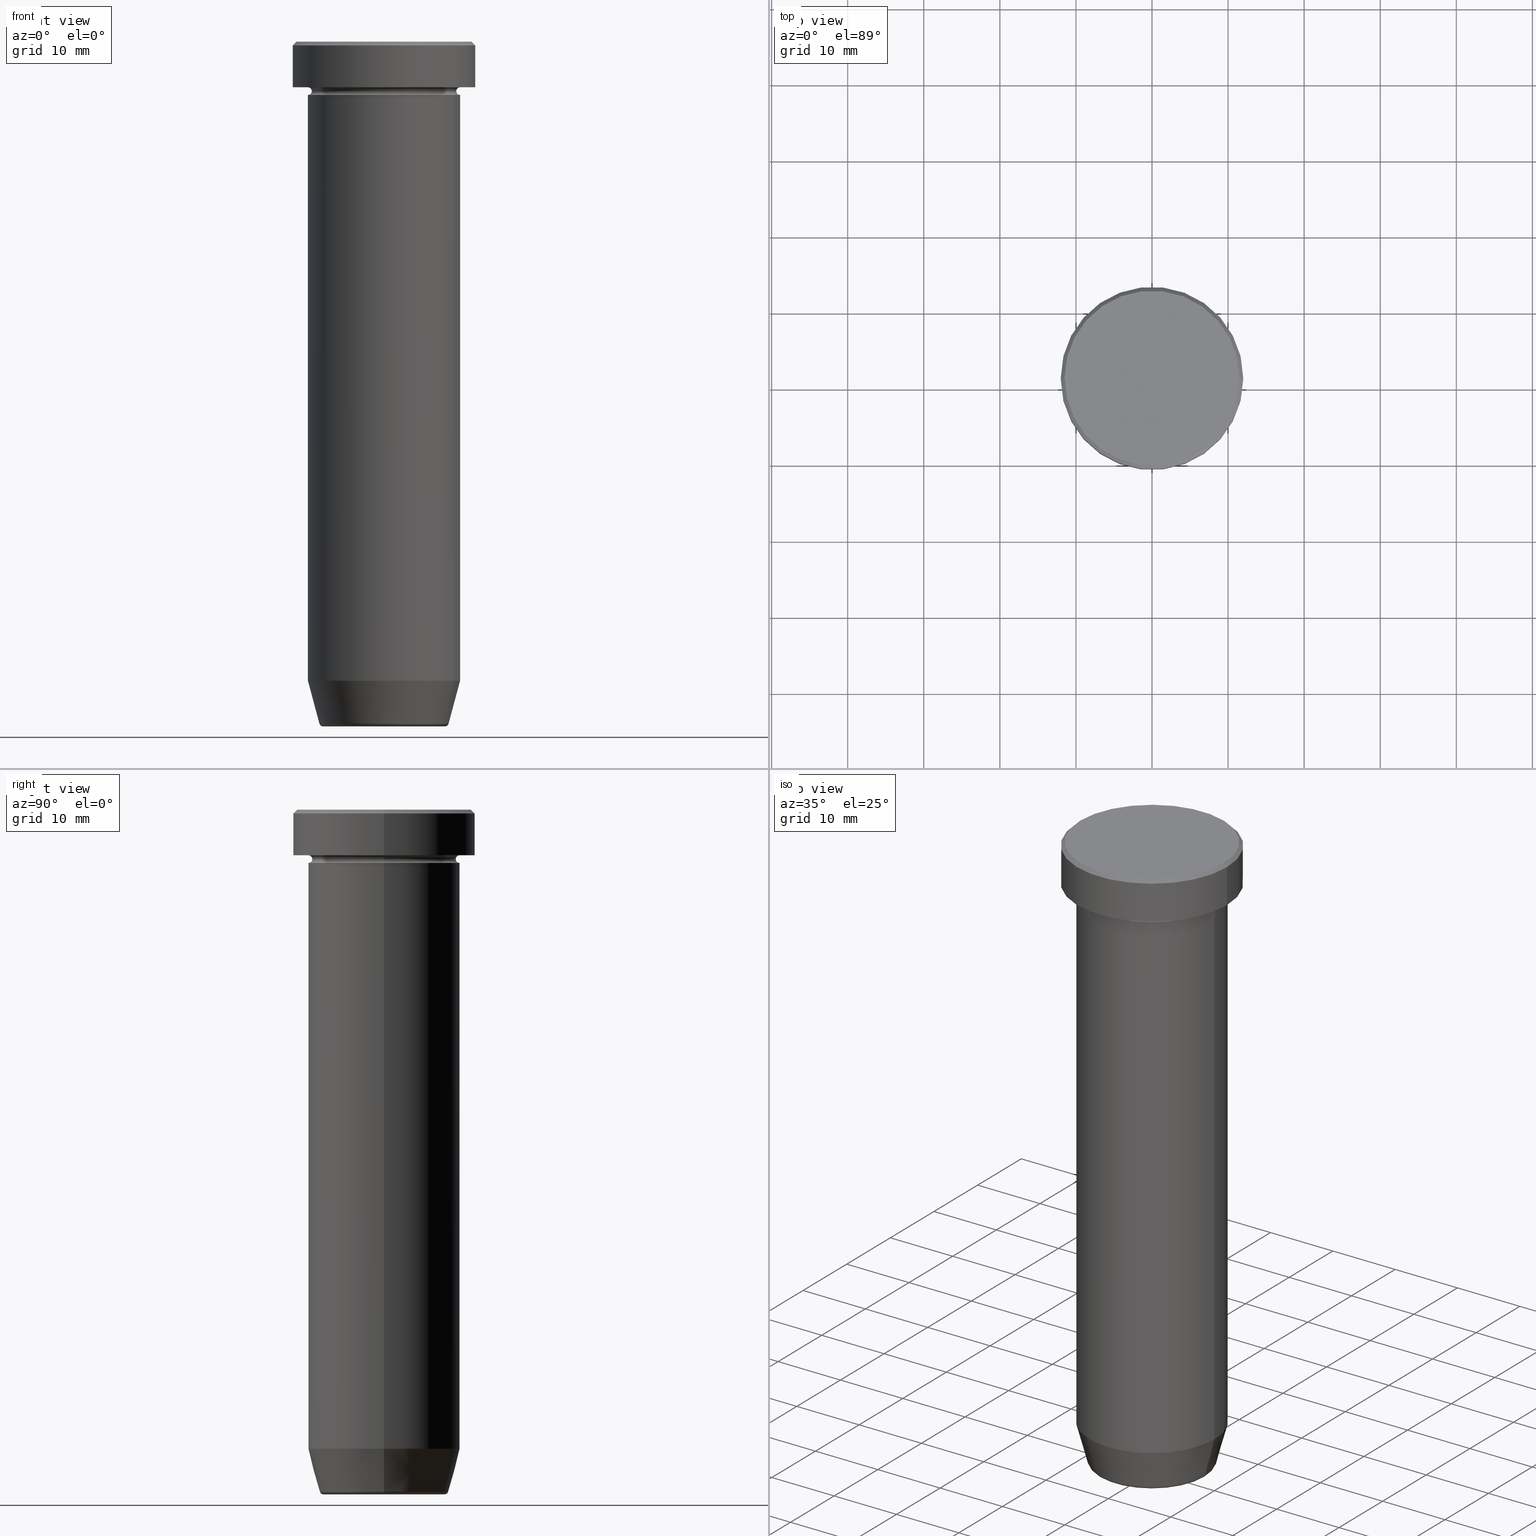
[diagram: canonical four-view strip — front | top / right | iso, engineering-drawing reading convention]
A machine part, canonical four-view strip (front | top / right | iso — engineering-drawing reading convention). The complete STEP part file that produces these views, byte-faithful:
ISO-10303-21;
HEADER;
FILE_DESCRIPTION (( 'STEP AP203' ),
    '1' );
FILE_NAME ('bccc.STEP',
    '2024-01-02T20:49:07',
    ( '' ),
    ( '' ),
    'SwSTEP 2.0',
    'SolidWorks 2019',
    '' );
FILE_SCHEMA (( 'CONFIG_CONTROL_DESIGN' ));
ENDSEC;

DATA;
#1 = AXIS2_PLACEMENT_3D ( 'NONE', #424, #57, #238 ) ;
#2 = DIRECTION ( 'NONE',  ( 0.000000000000000000, 0.000000000000000000, -1.000000000000000000 ) ) ;
#3 = EDGE_LOOP ( 'NONE', ( #506, #186, #483, #107 ) ) ;
#4 = DIRECTION ( 'NONE',  ( -0.000000000000000000, -0.000000000000000000, 1.000000000000000000 ) ) ;
#5 = DIRECTION ( 'NONE',  ( -1.000000000000000000, 1.224646799147353454E-16, 0.000000000000000000 ) ) ;
#6 = VERTEX_POINT ( 'NONE', #595 ) ;
#7 = ADVANCED_FACE ( 'NONE', ( #496 ), #291, .F. ) ;
#8 = EDGE_LOOP ( 'NONE', ( #511, #531 ) ) ;
#9 = CARTESIAN_POINT ( 'NONE',  ( 0.000000000000000000, 0.000000000000000000, -90.00000000000000000 ) ) ;
#10 = AXIS2_PLACEMENT_3D ( 'NONE', #172, #583, #362 ) ;
#11 = AXIS2_PLACEMENT_3D ( 'NONE', #169, #596, #279 ) ;
#12 = DIRECTION ( 'NONE',  ( 0.000000000000000000, 0.000000000000000000, -1.000000000000000000 ) ) ;
#13 = ORIENTED_EDGE ( 'NONE', *, *, #215, .T. ) ;
#14 = CARTESIAN_POINT ( 'NONE',  ( 0.000000000000000000, 0.000000000000000000, -6.499999999999999112 ) ) ;
#15 = APPLICATION_CONTEXT ( 'configuration controlled 3d designs of mechanical parts and assemblies' ) ;
#16 = LINE ( 'NONE', #569, #39 ) ;
#17 = EDGE_CURVE ( 'NONE', #88, #547, #82, .T. ) ;
#18 = DIRECTION ( 'NONE',  ( -1.000000000000000000, 0.000000000000000000, 0.000000000000000000 ) ) ;
#19 = CARTESIAN_POINT ( 'NONE',  ( 10.00000000000000000, 0.000000000000000000, -22.50000000000000000 ) ) ;
#20 = CONICAL_SURFACE ( 'NONE', #116, 8.392304845413260495, 0.2617993877991495744 ) ;
#21 = FACE_OUTER_BOUND ( 'NONE', #390, .T. ) ;
#22 = ORIENTED_EDGE ( 'NONE', *, *, #327, .T. ) ;
#23 = DIRECTION ( 'NONE',  ( 1.000000000000000000, 0.000000000000000000, 0.000000000000000000 ) ) ;
#24 = CIRCLE ( 'NONE', #345, 0.5000000000000004441 ) ;
#25 = ORIENTED_EDGE ( 'NONE', *, *, #586, .T. ) ;
#26 = DIRECTION ( 'NONE',  ( 1.000000000000000000, 0.000000000000000000, 0.000000000000000000 ) ) ;
#27 = AXIS2_PLACEMENT_3D ( 'NONE', #514, #94, #185 ) ;
#28 = EDGE_LOOP ( 'NONE', ( #95, #343, #477, #163 ) ) ;
#29 = FACE_OUTER_BOUND ( 'NONE', #3, .T. ) ;
#30 = VECTOR ( 'NONE', #349, 1000.000000000000000 ) ;
#31 = ORIENTED_EDGE ( 'NONE', *, *, #90, .F. ) ;
#32 = DIRECTION ( 'NONE',  ( 1.000000000000000000, 0.000000000000000000, 0.000000000000000000 ) ) ;
#33 = DATE_TIME_ROLE ( 'creation_date' ) ;
#34 = EDGE_CURVE ( 'NONE', #568, #252, #584, .T. ) ;
#35 = TOROIDAL_SURFACE ( 'NONE', #522, 10.00000000000000000, 0.5000000000000000000 ) ;
#36 = FACE_OUTER_BOUND ( 'NONE', #305, .T. ) ;
#37 = PERSON_AND_ORGANIZATION_ROLE ( 'creator' ) ;
#38 = AXIS2_PLACEMENT_3D ( 'NONE', #312, #340, #488 ) ;
#39 = VECTOR ( 'NONE', #235, 1000.000000000000000 ) ;
#40 = PERSON_AND_ORGANIZATION ( #269, #564 ) ;
#41 = CC_DESIGN_APPROVAL ( #209, ( #546 ) ) ;
#42 = DIRECTION ( 'NONE',  ( -0.000000000000000000, -0.000000000000000000, 1.000000000000000000 ) ) ;
#43 = EDGE_LOOP ( 'NONE', ( #170, #383, #260, #154 ) ) ;
#44 = EDGE_CURVE ( 'NONE', #79, #547, #24, .T. ) ;
#45 = SECURITY_CLASSIFICATION_LEVEL ( 'unclassified' ) ;
#46 = ORIENTED_EDGE ( 'NONE', *, *, #598, .T. ) ;
#47 = MANIFOLD_SOLID_BREP ( 'Zaoblit4', #262 ) ;
#48 = DIRECTION ( 'NONE',  ( -0.000000000000000000, -0.000000000000000000, 1.000000000000000000 ) ) ;
#49 = CARTESIAN_POINT ( 'NONE',  ( -10.00000000000000000, 0.000000000000000000, -6.500000000000000888 ) ) ;
#50 = CONICAL_SURFACE ( 'NONE', #324, 8.392304845413260495, 0.2617993877991495744 ) ;
#51 = DIRECTION ( 'NONE',  ( -0.000000000000000000, -0.000000000000000000, 1.000000000000000000 ) ) ;
#52 = LOCAL_TIME ( 21, 49, 7.000000000000000000, #173 ) ;
#53 = EDGE_LOOP ( 'NONE', ( #556, #385, #392, #232 ) ) ;
#54 = ORIENTED_EDGE ( 'NONE', *, *, #264, .F. ) ;
#55 = DIRECTION ( 'NONE',  ( 0.7071067811865451302, 8.659560562354904508E-17, -0.7071067811865500152 ) ) ;
#56 = EDGE_CURVE ( 'NONE', #443, #457, #366, .T. ) ;
#57 = DIRECTION ( 'NONE',  ( 0.000000000000000000, 0.000000000000000000, -1.000000000000000000 ) ) ;
#58 = DIRECTION ( 'NONE',  ( -0.000000000000000000, -1.000000000000000000, -0.000000000000000000 ) ) ;
#59 = DIRECTION ( 'NONE',  ( -0.000000000000000000, -0.000000000000000000, 1.000000000000000000 ) ) ;
#60 = VECTOR ( 'NONE', #150, 1000.000000000000000 ) ;
#61 = CARTESIAN_POINT ( 'NONE',  ( 0.000000000000000000, 0.000000000000000000, -0.4999999999999987232 ) ) ;
#62 = CARTESIAN_POINT ( 'NONE',  ( 0.000000000000000000, 0.000000000000000000, 0.000000000000000000 ) ) ;
#63 = EDGE_LOOP ( 'NONE', ( #397, #31, #365, #344 ) ) ;
#64 = CARTESIAN_POINT ( 'NONE',  ( 12.00000000000000000, 0.000000000000000000, -0.4999999999999987232 ) ) ;
#65 = AXIS2_PLACEMENT_3D ( 'NONE', #537, #110, #391 ) ;
#66 = CC_DESIGN_APPROVAL ( #492, ( #387 ) ) ;
#67 = DIRECTION ( 'NONE',  ( 0.000000000000000000, 0.000000000000000000, -1.000000000000000000 ) ) ;
#68 = ADVANCED_FACE ( 'NONE', ( #418 ), #184, .T. ) ;
#69 = ORIENTED_EDGE ( 'NONE', *, *, #206, .T. ) ;
#70 = DIRECTION ( 'NONE',  ( -0.000000000000000000, -0.000000000000000000, 1.000000000000000000 ) ) ;
#71 = CYLINDRICAL_SURFACE ( 'NONE', #536, 10.00000000000000000 ) ;
#72 = ORIENTED_EDGE ( 'NONE', *, *, #175, .F. ) ;
#73 = ADVANCED_FACE ( 'NONE', ( #532 ), #35, .F. ) ;
#74 = DIRECTION ( 'NONE',  ( -0.000000000000000000, -0.000000000000000000, 1.000000000000000000 ) ) ;
#75 = DIRECTION ( 'NONE',  ( 0.000000000000000000, -1.000000000000000000, 0.000000000000000000 ) ) ;
#76 = DIRECTION ( 'NONE',  ( -0.000000000000000000, -0.000000000000000000, 1.000000000000000000 ) ) ;
#77 = CC_DESIGN_DATE_AND_TIME_ASSIGNMENT ( #81, #455, ( #546 ) ) ;
#78 = PERSON_AND_ORGANIZATION ( #269, #564 ) ;
#79 = VERTEX_POINT ( 'NONE', #151 ) ;
#80 = CARTESIAN_POINT ( 'NONE',  ( 0.000000000000000000, 0.000000000000000000, -5.999999999999999112 ) ) ;
#81 = DATE_AND_TIME ( #363, #52 ) ;
#82 = LINE ( 'NONE', #369, #463 ) ;
#83 = VERTEX_POINT ( 'NONE', #576 ) ;
#84 = CIRCLE ( 'NONE', #124, 12.00000000000000000 ) ;
#85 = ADVANCED_FACE ( 'NONE', ( #197 ), #561, .F. ) ;
#86 = DATE_AND_TIME ( #371, #485 ) ;
#87 = DIRECTION ( 'NONE',  ( 0.000000000000000000, 0.000000000000000000, -1.000000000000000000 ) ) ;
#88 = VERTEX_POINT ( 'NONE', #112 ) ;
#89 = CIRCLE ( 'NONE', #128, 10.00000000000000000 ) ;
#90 = EDGE_CURVE ( 'NONE', #440, #83, #122, .T. ) ;
#91 = FACE_OUTER_BOUND ( 'NONE', #8, .T. ) ;
#92 = VECTOR ( 'NONE', #55, 1000.000000000000114 ) ;
#93 = ORIENTED_EDGE ( 'NONE', *, *, #264, .T. ) ;
#94 = DIRECTION ( 'NONE',  ( 0.000000000000000000, 0.000000000000000000, -1.000000000000000000 ) ) ;
#95 = ORIENTED_EDGE ( 'NONE', *, *, #17, .F. ) ;
#96 = DIRECTION ( 'NONE',  ( 1.000000000000000000, 0.000000000000000000, 0.000000000000000000 ) ) ;
#97 = EDGE_LOOP ( 'NONE', ( #468, #46 ) ) ;
#98 = DIRECTION ( 'NONE',  ( 1.000000000000000000, 0.000000000000000000, 0.000000000000000000 ) ) ;
#99 = ORIENTED_EDGE ( 'NONE', *, *, #17, .T. ) ;
#100 = CARTESIAN_POINT ( 'NONE',  ( 0.000000000000000000, 0.000000000000000000, -6.000000000000000000 ) ) ;
#101 = EDGE_LOOP ( 'NONE', ( #563, #348, #167, #227 ) ) ;
#102 = AXIS2_PLACEMENT_3D ( 'NONE', #337, #417, #422 ) ;
#103 = CC_DESIGN_SECURITY_CLASSIFICATION ( #546, ( #316 ) ) ;
#104 = AXIS2_PLACEMENT_3D ( 'NONE', #300, #48, #249 ) ;
#105 = EDGE_CURVE ( 'NONE', #503, #208, #541, .T. ) ;
#106 = CARTESIAN_POINT ( 'NONE',  ( 12.00000000000000000, 0.000000000000000000, -5.999999999999999112 ) ) ;
#107 = ORIENTED_EDGE ( 'NONE', *, *, #298, .F. ) ;
#108 = DIRECTION ( 'NONE',  ( 0.000000000000000000, 0.000000000000000000, -1.000000000000000000 ) ) ;
#109 = CARTESIAN_POINT ( 'NONE',  ( 0.000000000000000000, 0.000000000000000000, -89.50000000000000000 ) ) ;
#110 = DIRECTION ( 'NONE',  ( -1.224646799147353207E-16, 1.000000000000000000, 0.000000000000000000 ) ) ;
#111 = ORIENTED_EDGE ( 'NONE', *, *, #121, .F. ) ;
#112 = CARTESIAN_POINT ( 'NONE',  ( -10.00000000000000000, 1.224646799147353256E-15, -22.50000000000000000 ) ) ;
#113 = DIRECTION ( 'NONE',  ( 1.000000000000000000, 0.000000000000000000, 0.000000000000000000 ) ) ;
#114 = ORIENTED_EDGE ( 'NONE', *, *, #194, .T. ) ;
#115 = CC_DESIGN_PERSON_AND_ORGANIZATION_ASSIGNMENT ( #460, #228, ( #219 ) ) ;
#116 = AXIS2_PLACEMENT_3D ( 'NONE', #384, #199, #557 ) ;
#117 = ORIENTED_EDGE ( 'NONE', *, *, #458, .F. ) ;
#118 = DIRECTION ( 'NONE',  ( -1.000000000000000000, 0.000000000000000000, 0.000000000000000000 ) ) ;
#119 = VERTEX_POINT ( 'NONE', #520 ) ;
#120 = DIRECTION ( 'NONE',  ( -1.000000000000000000, 0.000000000000000000, 0.000000000000000000 ) ) ;
#121 = EDGE_CURVE ( 'NONE', #119, #79, #293, .T. ) ;
#122 = CIRCLE ( 'NONE', #453, 11.50000000000000533 ) ;
#123 = DIRECTION ( 'NONE',  ( -0.000000000000000000, -0.000000000000000000, 1.000000000000000000 ) ) ;
#124 = AXIS2_PLACEMENT_3D ( 'NONE', #560, #2, #433 ) ;
#125 = ORIENTED_EDGE ( 'NONE', *, *, #420, .T. ) ;
#126 = AXIS2_PLACEMENT_3D ( 'NONE', #404, #127, #270 ) ;
#127 = DIRECTION ( 'NONE',  ( -0.000000000000000000, -0.000000000000000000, 1.000000000000000000 ) ) ;
#128 = AXIS2_PLACEMENT_3D ( 'NONE', #375, #189, #517 ) ;
#129 = CALENDAR_DATE ( 2024, 2, 1 ) ;
#130 = LINE ( 'NONE', #452, #416 ) ;
#131 = APPLICATION_PROTOCOL_DEFINITION ( 'international standard', 'config_control_design', 1994, #555 ) ;
#132 = ADVANCED_FACE ( 'NONE', ( #142 ), #360, .T. ) ;
#133 = DESIGN_CONTEXT ( 'detailed design', #555, 'design' ) ;
#134 = AXIS2_PLACEMENT_3D ( 'NONE', #49, #58, #192 ) ;
#135 = APPROVAL_PERSON_ORGANIZATION ( #40, #209, #407 ) ;
#136 = PERSON_AND_ORGANIZATION ( #269, #564 ) ;
#137 = PERSON_AND_ORGANIZATION ( #269, #564 ) ;
#138 = ADVANCED_FACE ( 'NONE', ( #421 ), #284, .F. ) ;
#139 = EDGE_LOOP ( 'NONE', ( #200, #196, #148, #255 ) ) ;
#140 = CARTESIAN_POINT ( 'NONE',  ( 0.000000000000000000, 0.000000000000000000, -6.999999999999999112 ) ) ;
#141 = DIRECTION ( 'NONE',  ( -0.000000000000000000, -0.000000000000000000, 1.000000000000000000 ) ) ;
#142 = FACE_OUTER_BOUND ( 'NONE', #139, .T. ) ;
#143 = DIRECTION ( 'NONE',  ( -0.000000000000000000, -0.000000000000000000, 1.000000000000000000 ) ) ;
#144 = CONICAL_SURFACE ( 'NONE', #213, 11.50000000000000533, 0.7853981633974447263 ) ;
#145 = DIRECTION ( 'NONE',  ( 1.000000000000000000, 0.000000000000000000, 0.000000000000000000 ) ) ;
#146 = DIRECTION ( 'NONE',  ( 1.000000000000000000, 0.000000000000000000, 0.000000000000000000 ) ) ;
#147 = DIRECTION ( 'NONE',  ( 1.000000000000000000, 0.000000000000000000, 0.000000000000000000 ) ) ;
#148 = ORIENTED_EDGE ( 'NONE', *, *, #206, .F. ) ;
#149 = DIRECTION ( 'NONE',  ( 1.000000000000000000, 0.000000000000000000, 0.000000000000000000 ) ) ;
#150 = DIRECTION ( 'NONE',  ( -0.000000000000000000, -0.000000000000000000, 1.000000000000000000 ) ) ;
#151 = CARTESIAN_POINT ( 'NONE',  ( -9.500000000000000000, 1.194030629168669469E-15, -6.499999999999999112 ) ) ;
#152 = EDGE_CURVE ( 'NONE', #364, #547, #89, .T. ) ;
#153 = DIRECTION ( 'NONE',  ( -0.000000000000000000, -0.000000000000000000, 1.000000000000000000 ) ) ;
#154 = ORIENTED_EDGE ( 'NONE', *, *, #352, .T. ) ;
#155 = AXIS2_PLACEMENT_3D ( 'NONE', #530, #354, #261 ) ;
#156 = LOCAL_TIME ( 21, 49, 7.000000000000000000, #222 ) ;
#157 = CIRCLE ( 'NONE', #104, 8.491604264568310967 ) ;
#158 = DIRECTION ( 'NONE',  ( 1.224646799147353207E-16, 1.000000000000000000, 0.000000000000000000 ) ) ;
#159 = ORIENTED_EDGE ( 'NONE', *, *, #272, .F. ) ;
#160 = ADVANCED_FACE ( 'NONE', ( #331 ), #587, .T. ) ;
#161 = CARTESIAN_POINT ( 'NONE',  ( -11.50000000000000533, 0.000000000000000000, 0.000000000000000000 ) ) ;
#162 = ORIENTED_EDGE ( 'NONE', *, *, #105, .T. ) ;
#163 = ORIENTED_EDGE ( 'NONE', *, *, #290, .F. ) ;
#164 = DIRECTION ( 'NONE',  ( -1.000000000000000000, 1.224646799147353454E-16, 0.000000000000000000 ) ) ;
#165 = DIRECTION ( 'NONE',  ( -0.7071067811865451302, 0.000000000000000000, -0.7071067811865500152 ) ) ;
#166 = DIRECTION ( 'NONE',  ( 1.000000000000000000, 0.000000000000000000, 0.000000000000000000 ) ) ;
#167 = ORIENTED_EDGE ( 'NONE', *, *, #368, .T. ) ;
#168 = CARTESIAN_POINT ( 'NONE',  ( -8.491604264568310967, 1.132284198685156190E-15, -89.62940952255124216 ) ) ;
#169 = CARTESIAN_POINT ( 'NONE',  ( 0.000000000000000000, 0.000000000000000000, 0.000000000000000000 ) ) ;
#170 = ORIENTED_EDGE ( 'NONE', *, *, #215, .F. ) ;
#171 = CIRCLE ( 'NONE', #295, 10.00000000000000000 ) ;
#172 = CARTESIAN_POINT ( 'NONE',  ( 10.00000000000000000, 0.000000000000000000, -6.499999999999999112 ) ) ;
#173 = COORDINATED_UNIVERSAL_TIME_OFFSET ( 1, 0, .AHEAD. ) ;
#174 = ORIENTED_EDGE ( 'NONE', *, *, #521, .F. ) ;
#175 = EDGE_CURVE ( 'NONE', #503, #457, #210, .T. ) ;
#176 =( LENGTH_UNIT ( ) NAMED_UNIT ( * ) SI_UNIT ( .MILLI., .METRE. ) );
#177 = AXIS2_PLACEMENT_3D ( 'NONE', #559, #141, #188 ) ;
#178 = CARTESIAN_POINT ( 'NONE',  ( 0.000000000000000000, 0.000000000000000000, -6.000000000000000000 ) ) ;
#179 = AXIS2_PLACEMENT_3D ( 'NONE', #350, #158, #164 ) ;
#180 = CALENDAR_DATE ( 2024, 2, 1 ) ;
#181 = ORIENTED_EDGE ( 'NONE', *, *, #105, .F. ) ;
#182 = ADVANCED_FACE ( 'NONE', ( #248 ), #567, .T. ) ;
#183 = LINE ( 'NONE', #519, #361 ) ;
#184 = CYLINDRICAL_SURFACE ( 'NONE', #177, 10.00000000000000000 ) ;
#185 = DIRECTION ( 'NONE',  ( -1.000000000000000000, 0.000000000000000000, 0.000000000000000000 ) ) ;
#186 = ORIENTED_EDGE ( 'NONE', *, *, #175, .T. ) ;
#187 = LINE ( 'NONE', #429, #60 ) ;
#188 = DIRECTION ( 'NONE',  ( 1.000000000000000000, 0.000000000000000000, 0.000000000000000000 ) ) ;
#189 = DIRECTION ( 'NONE',  ( -0.000000000000000000, -0.000000000000000000, 1.000000000000000000 ) ) ;
#190 = ORIENTED_EDGE ( 'NONE', *, *, #357, .T. ) ;
#191 = CIRCLE ( 'NONE', #278, 11.50000000000000533 ) ;
#192 = DIRECTION ( 'NONE',  ( 0.000000000000000000, 0.000000000000000000, -1.000000000000000000 ) ) ;
#193 = DIRECTION ( 'NONE',  ( -0.000000000000000000, -0.000000000000000000, 1.000000000000000000 ) ) ;
#194 = EDGE_CURVE ( 'NONE', #528, #252, #157, .T. ) ;
#195 = DIRECTION ( 'NONE',  ( 1.000000000000000000, 0.000000000000000000, 0.000000000000000000 ) ) ;
#196 = ORIENTED_EDGE ( 'NONE', *, *, #223, .T. ) ;
#197 = FACE_OUTER_BOUND ( 'NONE', #216, .T. ) ;
#198 = ORIENTED_EDGE ( 'NONE', *, *, #152, .F. ) ;
#199 = DIRECTION ( 'NONE',  ( -0.000000000000000000, -0.000000000000000000, 1.000000000000000000 ) ) ;
#200 = ORIENTED_EDGE ( 'NONE', *, *, #508, .F. ) ;
#201 = AXIS2_PLACEMENT_3D ( 'NONE', #226, #75, #408 ) ;
#202 = CARTESIAN_POINT ( 'NONE',  ( 0.000000000000000000, 4.898587196589412237E-15, -90.00000000000000000 ) ) ;
#203 = CARTESIAN_POINT ( 'NONE',  ( -9.999999999999998224, 1.224646799147353059E-15, 0.000000000000000000 ) ) ;
#204 = DIRECTION ( 'NONE',  ( -0.000000000000000000, -0.000000000000000000, 1.000000000000000000 ) ) ;
#205 = ORIENTED_EDGE ( 'NONE', *, *, #34, .F. ) ;
#206 = EDGE_CURVE ( 'NONE', #237, #431, #84, .T. ) ;
#207 = DIRECTION ( 'NONE',  ( -0.000000000000000000, -0.000000000000000000, 1.000000000000000000 ) ) ;
#208 = VERTEX_POINT ( 'NONE', #380 ) ;
#209 = APPROVAL ( #225, 'NEUR�EN�' ) ;
#210 = LINE ( 'NONE', #203, #30 ) ;
#211 = DIRECTION ( 'NONE',  ( -0.000000000000000000, -0.000000000000000000, 1.000000000000000000 ) ) ;
#212 = CARTESIAN_POINT ( 'NONE',  ( 0.000000000000000000, 0.000000000000000000, 0.000000000000000000 ) ) ;
#213 = AXIS2_PLACEMENT_3D ( 'NONE', #306, #251, #118 ) ;
#214 = DIRECTION ( 'NONE',  ( -0.000000000000000000, -0.000000000000000000, 1.000000000000000000 ) ) ;
#215 = EDGE_CURVE ( 'NONE', #273, #237, #183, .T. ) ;
#216 = EDGE_LOOP ( 'NONE', ( #22, #93 ) ) ;
#217 = FACE_OUTER_BOUND ( 'NONE', #329, .T. ) ;
#218 = DIRECTION ( 'NONE',  ( -1.000000000000000000, 0.000000000000000000, 0.000000000000000000 ) ) ;
#219 = PRODUCT ( 'bccc', 'bccc', '', ( #507 ) ) ;
#220 = AXIS2_PLACEMENT_3D ( 'NONE', #400, #275, #166 ) ;
#221 = DIRECTION ( 'NONE',  ( 0.000000000000000000, 0.000000000000000000, -1.000000000000000000 ) ) ;
#222 = COORDINATED_UNIVERSAL_TIME_OFFSET ( 1, 0, .AHEAD. ) ;
#223 = EDGE_CURVE ( 'NONE', #83, #431, #239, .T. ) ;
#224 = AXIS2_PLACEMENT_3D ( 'NONE', #140, #4, #147 ) ;
#225 = APPROVAL_STATUS ( 'not_yet_approved' ) ;
#226 = CARTESIAN_POINT ( 'NONE',  ( 8.008641351423779753, 0.000000000000000000, -89.50000000000000000 ) ) ;
#227 = ORIENTED_EDGE ( 'NONE', *, *, #598, .F. ) ;
#228 = PERSON_AND_ORGANIZATION_ROLE ( 'design_owner' ) ;
#229 = ORIENTED_EDGE ( 'NONE', *, *, #335, .F. ) ;
#230 = ADVANCED_FACE ( 'NONE', ( #241 ), #20, .T. ) ;
#231 = PERSON_AND_ORGANIZATION_ROLE ( 'classification_officer' ) ;
#232 = ORIENTED_EDGE ( 'NONE', *, *, #368, .F. ) ;
#233 = CIRCLE ( 'NONE', #134, 0.5000000000000004441 ) ;
#234 = AXIS2_PLACEMENT_3D ( 'NONE', #80, #76, #32 ) ;
#235 = DIRECTION ( 'NONE',  ( -0.2588190451025209060, 3.169619151431766790E-17, 0.9659258262890682012 ) ) ;
#236 = PRODUCT_RELATED_PRODUCT_CATEGORY ( 'detail', '', ( #219 ) ) ;
#237 = VERTEX_POINT ( 'NONE', #509 ) ;
#238 = DIRECTION ( 'NONE',  ( -1.000000000000000000, 0.000000000000000000, 0.000000000000000000 ) ) ;
#239 = LINE ( 'NONE', #244, #92 ) ;
#240 = ORIENTED_EDGE ( 'NONE', *, *, #441, .F. ) ;
#241 = FACE_OUTER_BOUND ( 'NONE', #499, .T. ) ;
#242 = DIRECTION ( 'NONE',  ( 1.000000000000000000, 0.000000000000000000, 0.000000000000000000 ) ) ;
#243 = ADVANCED_FACE ( 'NONE', ( #91 ), #382, .T. ) ;
#244 = CARTESIAN_POINT ( 'NONE',  ( 11.50000000000000533, 1.408343819019456768E-15, 0.000000000000000000 ) ) ;
#245 = AXIS2_PLACEMENT_3D ( 'NONE', #319, #221, #544 ) ;
#246 = ORIENTED_EDGE ( 'NONE', *, *, #194, .F. ) ;
#247 = EDGE_LOOP ( 'NONE', ( #525, #99, #198, #450 ) ) ;
#248 = FACE_OUTER_BOUND ( 'NONE', #575, .T. ) ;
#249 = DIRECTION ( 'NONE',  ( -1.000000000000000000, 0.000000000000000000, 0.000000000000000000 ) ) ;
#250 = MANIFOLD_SOLID_BREP ( 'Zkosen�1', #551 ) ;
#251 = DIRECTION ( 'NONE',  ( 0.000000000000000000, 0.000000000000000000, -1.000000000000000000 ) ) ;
#252 = VERTEX_POINT ( 'NONE', #287 ) ;
#253 = DIRECTION ( 'NONE',  ( -0.000000000000000000, -0.000000000000000000, 1.000000000000000000 ) ) ;
#254 = FACE_OUTER_BOUND ( 'NONE', #294, .T. ) ;
#255 = ORIENTED_EDGE ( 'NONE', *, *, #548, .F. ) ;
#256 = AXIS2_PLACEMENT_3D ( 'NONE', #258, #538, #120 ) ;
#257 = CC_DESIGN_DATE_AND_TIME_ASSIGNMENT ( #86, #33, ( #387 ) ) ;
#258 = CARTESIAN_POINT ( 'NONE',  ( 0.000000000000000000, 0.000000000000000000, -89.62940952255124216 ) ) ;
#259 = ORIENTED_EDGE ( 'NONE', *, *, #539, .T. ) ;
#260 = ORIENTED_EDGE ( 'NONE', *, *, #565, .T. ) ;
#261 = DIRECTION ( 'NONE',  ( 1.000000000000000000, 0.000000000000000000, 0.000000000000000000 ) ) ;
#262 = CLOSED_SHELL ( 'NONE', ( #160, #282, #432, #476, #376, #230, #85, #446 ) ) ;
#263 = ORIENTED_EDGE ( 'NONE', *, *, #56, .T. ) ;
#264 = EDGE_CURVE ( 'NONE', #6, #568, #415, .T. ) ;
#265 = PLANE ( 'NONE',  #339 ) ;
#266 = DIRECTION ( 'NONE',  ( 1.224646799147353207E-16, 1.000000000000000000, 0.000000000000000000 ) ) ;
#267 = AXIS2_PLACEMENT_3D ( 'NONE', #9, #12, #98 ) ;
#268 = CARTESIAN_POINT ( 'NONE',  ( 0.000000000000000000, 0.000000000000000000, -6.499999999999999112 ) ) ;
#269 = PERSON ( 'NEUR�EN�', 'NEUR�EN�', 'NEUR�EN�', ('NEUR�EN�'), ('NEUR�EN�'), ('NEUR�EN�') ) ;
#270 = DIRECTION ( 'NONE',  ( 1.000000000000000000, 0.000000000000000000, 0.000000000000000000 ) ) ;
#271 = PERSON_AND_ORGANIZATION ( #269, #564 ) ;
#272 = EDGE_CURVE ( 'NONE', #528, #503, #16, .T. ) ;
#273 = VERTEX_POINT ( 'NONE', #374 ) ;
#274 =( NAMED_UNIT ( * ) PLANE_ANGLE_UNIT ( ) SI_UNIT ( $, .RADIAN. ) );
#275 = DIRECTION ( 'NONE',  ( -0.000000000000000000, -0.000000000000000000, 1.000000000000000000 ) ) ;
#276 = APPROVAL_DATE_TIME ( #502, #209 ) ;
#277 = ORIENTED_EDGE ( 'NONE', *, *, #44, .T. ) ;
#278 = AXIS2_PLACEMENT_3D ( 'NONE', #497, #74, #451 ) ;
#279 = DIRECTION ( 'NONE',  ( 1.000000000000000000, 0.000000000000000000, 0.000000000000000000 ) ) ;
#280 = DATE_AND_TIME ( #129, #573 ) ;
#281 = CARTESIAN_POINT ( 'NONE',  ( 0.000000000000000000, 0.000000000000000000, -22.50000000000000000 ) ) ;
#282 = ADVANCED_FACE ( 'NONE', ( #338 ), #50, .T. ) ;
#283 = CARTESIAN_POINT ( 'NONE',  ( 0.000000000000000000, 0.000000000000000000, -83.99999999999998579 ) ) ;
#284 = TOROIDAL_SURFACE ( 'NONE', #27, 10.00000000000000000, 0.5000000000000000000 ) ;
#285 = AXIS2_PLACEMENT_3D ( 'NONE', #389, #207, #574 ) ;
#286 = VERTEX_POINT ( 'NONE', #524 ) ;
#287 = CARTESIAN_POINT ( 'NONE',  ( 8.491604264568310967, 0.000000000000000000, -89.62940952255124216 ) ) ;
#288 = ORIENTED_EDGE ( 'NONE', *, *, #298, .T. ) ;
#289 = CARTESIAN_POINT ( 'NONE',  ( 8.392304845413260495, 0.000000000000000000, -90.00000000000000000 ) ) ;
#290 = EDGE_CURVE ( 'NONE', #547, #364, #553, .T. ) ;
#291 = TOROIDAL_SURFACE ( 'NONE', #220, 10.00000000000000000, 0.5000000000000000000 ) ;
#292 = CARTESIAN_POINT ( 'NONE',  ( 10.00000000000000000, 0.000000000000000000, -22.50000000000000000 ) ) ;
#293 = CIRCLE ( 'NONE', #543, 9.500000000000000000 ) ;
#294 = EDGE_LOOP ( 'NONE', ( #229, #518 ) ) ;
#295 = AXIS2_PLACEMENT_3D ( 'NONE', #328, #336, #513 ) ;
#296 = DIRECTION ( 'NONE',  ( -1.000000000000000000, 0.000000000000000000, 0.000000000000000000 ) ) ;
#297 = VERTEX_POINT ( 'NONE', #292 ) ;
#298 = EDGE_CURVE ( 'NONE', #208, #443, #187, .T. ) ;
#299 = CYLINDRICAL_SURFACE ( 'NONE', #597, 12.00000000000000000 ) ;
#300 = CARTESIAN_POINT ( 'NONE',  ( 0.000000000000000000, 0.000000000000000000, -89.62940952255124216 ) ) ;
#301 = ORIENTED_EDGE ( 'NONE', *, *, #152, .T. ) ;
#302 = DIRECTION ( 'NONE',  ( 0.000000000000000000, -0.000000000000000000, 1.000000000000000000 ) ) ;
#303 = CC_DESIGN_PERSON_AND_ORGANIZATION_ASSIGNMENT ( #137, #231, ( #546 ) ) ;
#304 = DIRECTION ( 'NONE',  ( -1.000000000000000000, 0.000000000000000000, -0.000000000000000000 ) ) ;
#305 = EDGE_LOOP ( 'NONE', ( #470, #277, #486, #174 ) ) ;
#306 = CARTESIAN_POINT ( 'NONE',  ( 0.000000000000000000, 0.000000000000000000, 0.000000000000000000 ) ) ;
#307 = EDGE_LOOP ( 'NONE', ( #263, #25 ) ) ;
#308 = VECTOR ( 'NONE', #471, 1000.000000000000000 ) ;
#309 = ORIENTED_EDGE ( 'NONE', *, *, #441, .T. ) ;
#310 = DIRECTION ( 'NONE',  ( -1.000000000000000000, 0.000000000000000000, -0.000000000000000000 ) ) ;
#311 = EDGE_CURVE ( 'NONE', #208, #503, #448, .T. ) ;
#312 = CARTESIAN_POINT ( 'NONE',  ( 0.000000000000000000, 0.000000000000000000, -89.50000000000000000 ) ) ;
#313 = AXIS2_PLACEMENT_3D ( 'NONE', #281, #462, #599 ) ;
#314 = DIRECTION ( 'NONE',  ( 1.000000000000000000, 0.000000000000000000, 0.000000000000000000 ) ) ;
#315 = CIRCLE ( 'NONE', #285, 12.00000000000000000 ) ;
#316 = PRODUCT_DEFINITION_FORMATION_WITH_SPECIFIED_SOURCE ( 'LIBOVOLN�', '', #219, .NOT_KNOWN. ) ;
#317 = EDGE_LOOP ( 'NONE', ( #309, #550, #489, #428 ) ) ;
#318 = EDGE_CURVE ( 'NONE', #372, #286, #572, .T. ) ;
#319 = CARTESIAN_POINT ( 'NONE',  ( 0.000000000000000000, 12.00000000000000000, -6.000000000000000000 ) ) ;
#320 = APPROVAL_STATUS ( 'not_yet_approved' ) ;
#321 = DIRECTION ( 'NONE',  ( -0.000000000000000000, -0.000000000000000000, 1.000000000000000000 ) ) ;
#322 = APPROVAL_ROLE ( '' ) ;
#323 = PERSON_AND_ORGANIZATION ( #269, #564 ) ;
#324 = AXIS2_PLACEMENT_3D ( 'NONE', #469, #143, #474 ) ;
#325 = LOCAL_TIME ( 21, 49, 7.000000000000000000, #498 ) ;
#326 = APPROVAL_DATE_TIME ( #280, #492 ) ;
#327 = EDGE_CURVE ( 'NONE', #568, #6, #388, .T. ) ;
#328 = CARTESIAN_POINT ( 'NONE',  ( 0.000000000000000000, 0.000000000000000000, -22.50000000000000000 ) ) ;
#329 = EDGE_LOOP ( 'NONE', ( #473, #117 ) ) ;
#330 = DIRECTION ( 'NONE',  ( 1.000000000000000000, 0.000000000000000000, 0.000000000000000000 ) ) ;
#331 = FACE_OUTER_BOUND ( 'NONE', #540, .T. ) ;
#332 = AXIS2_PLACEMENT_3D ( 'NONE', #109, #253, #436 ) ;
#333 = CIRCLE ( 'NONE', #65, 0.5000000000000004441 ) ;
#334 = APPROVAL_PERSON_ORGANIZATION ( #359, #492, #322 ) ;
#335 = EDGE_CURVE ( 'NONE', #297, #88, #171, .T. ) ;
#336 = DIRECTION ( 'NONE',  ( -0.000000000000000000, -0.000000000000000000, 1.000000000000000000 ) ) ;
#337 = CARTESIAN_POINT ( 'NONE',  ( 0.000000000000000000, 0.000000000000000000, 0.000000000000000000 ) ) ;
#338 = FACE_OUTER_BOUND ( 'NONE', #317, .T. ) ;
#339 = AXIS2_PLACEMENT_3D ( 'NONE', #527, #346, #304 ) ;
#340 = DIRECTION ( 'NONE',  ( -0.000000000000000000, -0.000000000000000000, 1.000000000000000000 ) ) ;
#341 = CIRCLE ( 'NONE', #234, 12.00000000000000000 ) ;
#342 = DIRECTION ( 'NONE',  ( -0.000000000000000000, -0.000000000000000000, 1.000000000000000000 ) ) ;
#343 = ORIENTED_EDGE ( 'NONE', *, *, #501, .T. ) ;
#344 = ORIENTED_EDGE ( 'NONE', *, *, #352, .F. ) ;
#345 = AXIS2_PLACEMENT_3D ( 'NONE', #554, #266, #5 ) ;
#346 = DIRECTION ( 'NONE',  ( 0.000000000000000000, 0.000000000000000000, -1.000000000000000000 ) ) ;
#347 = ORIENTED_EDGE ( 'NONE', *, *, #327, .F. ) ;
#348 = ORIENTED_EDGE ( 'NONE', *, *, #121, .T. ) ;
#349 = DIRECTION ( 'NONE',  ( -0.000000000000000000, -0.000000000000000000, 1.000000000000000000 ) ) ;
#350 = CARTESIAN_POINT ( 'NONE',  ( -8.008641351423779753, 9.807756996540264321E-16, -89.50000000000000000 ) ) ;
#351 = TOROIDAL_SURFACE ( 'NONE', #591, 10.00000000000000000, 0.5000000000000000000 ) ;
#352 = EDGE_CURVE ( 'NONE', #431, #237, #395, .T. ) ;
#353 = APPROVAL_PERSON_ORGANIZATION ( #323, #512, #500 ) ;
#354 = DIRECTION ( 'NONE',  ( -0.000000000000000000, -0.000000000000000000, 1.000000000000000000 ) ) ;
#355 = LINE ( 'NONE', #542, #505 ) ;
#356 = DIRECTION ( 'NONE',  ( -0.000000000000000000, -0.000000000000000000, 1.000000000000000000 ) ) ;
#357 = EDGE_CURVE ( 'NONE', #252, #208, #516, .T. ) ;
#358 = CARTESIAN_POINT ( 'NONE',  ( -9.999999999999998224, 1.224646799147353059E-15, -83.99999999999998579 ) ) ;
#359 = PERSON_AND_ORGANIZATION ( #269, #564 ) ;
#360 = CONICAL_SURFACE ( 'NONE', #1, 11.50000000000000533, 0.7853981633974447263 ) ;
#361 = VECTOR ( 'NONE', #478, 1000.000000000000000 ) ;
#362 = DIRECTION ( 'NONE',  ( 0.000000000000000000, 0.000000000000000000, -1.000000000000000000 ) ) ;
#363 = CALENDAR_DATE ( 2024, 2, 1 ) ;
#364 = VERTEX_POINT ( 'NONE', #425 ) ;
#365 = ORIENTED_EDGE ( 'NONE', *, *, #548, .T. ) ;
#366 = CIRCLE ( 'NONE', #313, 10.00000000000000000 ) ;
#367 = COORDINATED_UNIVERSAL_TIME_OFFSET ( 1, 0, .AHEAD. ) ;
#368 = EDGE_CURVE ( 'NONE', #79, #372, #233, .T. ) ;
#369 = CARTESIAN_POINT ( 'NONE',  ( -10.00000000000000000, 1.224646799147353256E-15, 0.000000000000000000 ) ) ;
#370 = CIRCLE ( 'NONE', #155, 9.500000000000000000 ) ;
#371 = CALENDAR_DATE ( 2024, 2, 1 ) ;
#372 = VERTEX_POINT ( 'NONE', #566 ) ;
#373 = VERTEX_POINT ( 'NONE', #106 ) ;
#374 = CARTESIAN_POINT ( 'NONE',  ( -12.00000000000000000, 1.469576158976823947E-15, -5.999999999999999112 ) ) ;
#375 = CARTESIAN_POINT ( 'NONE',  ( 0.000000000000000000, 0.000000000000000000, -6.999999999999999112 ) ) ;
#376 = ADVANCED_FACE ( 'NONE', ( #21 ), #394, .T. ) ;
#377 = CARTESIAN_POINT ( 'NONE',  ( 0.000000000000000000, 0.000000000000000000, -90.00000000000000000 ) ) ;
#378 = CIRCLE ( 'NONE', #456, 10.00000000000000000 ) ;
#379 = VECTOR ( 'NONE', #342, 1000.000000000000000 ) ;
#380 = CARTESIAN_POINT ( 'NONE',  ( 9.999999999999998224, 0.000000000000000000, -83.99999999999998579 ) ) ;
#381 = CARTESIAN_POINT ( 'NONE',  ( 0.000000000000000000, 0.000000000000000000, 0.000000000000000000 ) ) ;
#382 = PLANE ( 'NONE',  #102 ) ;
#383 = ORIENTED_EDGE ( 'NONE', *, *, #458, .T. ) ;
#384 = CARTESIAN_POINT ( 'NONE',  ( 0.000000000000000000, 0.000000000000000000, -90.00000000000000000 ) ) ;
#385 = ORIENTED_EDGE ( 'NONE', *, *, #464, .T. ) ;
#386 = ADVANCED_FACE ( 'NONE', ( #481 ), #299, .T. ) ;
#387 = PRODUCT_DEFINITION ( 'NEZN�M�', '', #316, #133 ) ;
#388 = CIRCLE ( 'NONE', #589, 8.008641351423779753 ) ;
#389 = CARTESIAN_POINT ( 'NONE',  ( 0.000000000000000000, 0.000000000000000000, -5.999999999999999112 ) ) ;
#390 = EDGE_LOOP ( 'NONE', ( #72, #162, #288, #412 ) ) ;
#391 = DIRECTION ( 'NONE',  ( -1.000000000000000000, -1.224646799147353454E-16, 0.000000000000000000 ) ) ;
#392 = ORIENTED_EDGE ( 'NONE', *, *, #318, .F. ) ;
#393 = CARTESIAN_POINT ( 'NONE',  ( 0.000000000000000000, 10.00000000000000000, -22.50000000000000000 ) ) ;
#394 = CYLINDRICAL_SURFACE ( 'NONE', #475, 9.999999999999998224 ) ;
#395 = CIRCLE ( 'NONE', #562, 12.00000000000000000 ) ;
#396 = CC_DESIGN_APPROVAL ( #512, ( #316 ) ) ;
#397 = ORIENTED_EDGE ( 'NONE', *, *, #223, .F. ) ;
#398 = FACE_OUTER_BOUND ( 'NONE', #247, .T. ) ;
#399 = EDGE_CURVE ( 'NONE', #297, #364, #444, .T. ) ;
#400 = CARTESIAN_POINT ( 'NONE',  ( 0.000000000000000000, 0.000000000000000000, -6.499999999999999112 ) ) ;
#401 = ADVANCED_BREP_SHAPE_REPRESENTATION ( 'bccc', ( #250, #47, #11 ), #467 ) ;
#402 = PLANE ( 'NONE',  #245 ) ;
#403 = CC_DESIGN_PERSON_AND_ORGANIZATION_ASSIGNMENT ( #78, #411, ( #387 ) ) ;
#404 = CARTESIAN_POINT ( 'NONE',  ( 0.000000000000000000, 0.000000000000000000, -22.50000000000000000 ) ) ;
#405 = COORDINATED_UNIVERSAL_TIME_OFFSET ( 1, 0, .AHEAD. ) ;
#406 = CIRCLE ( 'NONE', #126, 10.00000000000000000 ) ;
#407 = APPROVAL_ROLE ( '' ) ;
#408 = DIRECTION ( 'NONE',  ( 0.000000000000000000, 0.000000000000000000, -1.000000000000000000 ) ) ;
#409 = ORIENTED_EDGE ( 'NONE', *, *, #565, .F. ) ;
#410 = EDGE_CURVE ( 'NONE', #79, #119, #370, .T. ) ;
#411 = PERSON_AND_ORGANIZATION_ROLE ( 'creator' ) ;
#412 = ORIENTED_EDGE ( 'NONE', *, *, #586, .F. ) ;
#413 = CALENDAR_DATE ( 2024, 2, 1 ) ;
#414 = EDGE_LOOP ( 'NONE', ( #419, #347, #479, #246 ) ) ;
#415 = CIRCLE ( 'NONE', #267, 8.008641351423779753 ) ;
#416 = VECTOR ( 'NONE', #165, 1000.000000000000114 ) ;
#417 = DIRECTION ( 'NONE',  ( 0.000000000000000000, -0.000000000000000000, 1.000000000000000000 ) ) ;
#418 = FACE_OUTER_BOUND ( 'NONE', #28, .T. ) ;
#419 = ORIENTED_EDGE ( 'NONE', *, *, #420, .F. ) ;
#420 = EDGE_CURVE ( 'NONE', #6, #528, #466, .T. ) ;
#421 = FACE_OUTER_BOUND ( 'NONE', #53, .T. ) ;
#422 = DIRECTION ( 'NONE',  ( 1.000000000000000000, 0.000000000000000000, 0.000000000000000000 ) ) ;
#423 = CARTESIAN_POINT ( 'NONE',  ( 0.000000000000000000, 0.000000000000000000, -6.500000000000000888 ) ) ;
#424 = CARTESIAN_POINT ( 'NONE',  ( 0.000000000000000000, 0.000000000000000000, 0.000000000000000000 ) ) ;
#425 = CARTESIAN_POINT ( 'NONE',  ( 10.00000000000000000, 0.000000000000000000, -6.999999999999999112 ) ) ;
#426 = CARTESIAN_POINT ( 'NONE',  ( 0.000000000000000000, 0.000000000000000000, -83.99999999999998579 ) ) ;
#427 = AXIS2_PLACEMENT_3D ( 'NONE', #62, #211, #113 ) ;
#428 = ORIENTED_EDGE ( 'NONE', *, *, #357, .F. ) ;
#429 = CARTESIAN_POINT ( 'NONE',  ( 9.999999999999998224, 0.000000000000000000, 0.000000000000000000 ) ) ;
#430 = CARTESIAN_POINT ( 'NONE',  ( 0.000000000000000000, 0.000000000000000000, 0.000000000000000000 ) ) ;
#431 = VERTEX_POINT ( 'NONE', #64 ) ;
#432 = ADVANCED_FACE ( 'NONE', ( #29 ), #535, .T. ) ;
#433 = DIRECTION ( 'NONE',  ( 1.000000000000000000, 0.000000000000000000, 0.000000000000000000 ) ) ;
#434 = FACE_OUTER_BOUND ( 'NONE', #414, .T. ) ;
#435 = ADVANCED_FACE ( 'NONE', ( #398 ), #71, .T. ) ;
#436 = DIRECTION ( 'NONE',  ( 1.000000000000000000, 0.000000000000000000, 0.000000000000000000 ) ) ;
#437 = AXIS2_PLACEMENT_3D ( 'NONE', #100, #571, #296 ) ;
#438 = CARTESIAN_POINT ( 'NONE',  ( 0.000000000000000000, 0.000000000000000000, 0.000000000000000000 ) ) ;
#439 = PRODUCT_DEFINITION_SHAPE ( 'NONE', 'NONE',  #387 ) ;
#440 = VERTEX_POINT ( 'NONE', #161 ) ;
#441 = EDGE_CURVE ( 'NONE', #252, #528, #515, .T. ) ;
#442 = CARTESIAN_POINT ( 'NONE',  ( -10.00000000000000000, 1.224646799147353256E-15, -22.50000000000000000 ) ) ;
#443 = VERTEX_POINT ( 'NONE', #19 ) ;
#444 = LINE ( 'NONE', #579, #379 ) ;
#445 = ORIENTED_EDGE ( 'NONE', *, *, #521, .T. ) ;
#446 = ADVANCED_FACE ( 'NONE', ( #434 ), #545, .T. ) ;
#447 = CARTESIAN_POINT ( 'NONE',  ( 0.000000000000000000, 0.000000000000000000, 0.000000000000000000 ) ) ;
#448 = CIRCLE ( 'NONE', #526, 9.999999999999998224 ) ;
#449 = AXIS2_PLACEMENT_3D ( 'NONE', #430, #51, #558 ) ;
#450 = ORIENTED_EDGE ( 'NONE', *, *, #399, .F. ) ;
#451 = DIRECTION ( 'NONE',  ( 1.000000000000000000, 0.000000000000000000, 0.000000000000000000 ) ) ;
#452 = CARTESIAN_POINT ( 'NONE',  ( -11.50000000000000533, 0.000000000000000000, 0.000000000000000000 ) ) ;
#453 = AXIS2_PLACEMENT_3D ( 'NONE', #381, #472, #242 ) ;
#454 = SHAPE_DEFINITION_REPRESENTATION ( #439, #401 ) ;
#455 = DATE_TIME_ROLE ( 'classification_date' ) ;
#456 = AXIS2_PLACEMENT_3D ( 'NONE', #487, #70, #314 ) ;
#457 = VERTEX_POINT ( 'NONE', #442 ) ;
#458 = EDGE_CURVE ( 'NONE', #273, #373, #315, .T. ) ;
#459 = UNCERTAINTY_MEASURE_WITH_UNIT (LENGTH_MEASURE( 1.000000000000000082E-05 ), #176, 'distance_accuracy_value', 'NONE');
#460 = PERSON_AND_ORGANIZATION ( #269, #564 ) ;
#461 = DATE_AND_TIME ( #180, #325 ) ;
#462 = DIRECTION ( 'NONE',  ( -0.000000000000000000, -0.000000000000000000, 1.000000000000000000 ) ) ;
#463 = VECTOR ( 'NONE', #356, 1000.000000000000000 ) ;
#464 = EDGE_CURVE ( 'NONE', #119, #286, #333, .T. ) ;
#465 = DIRECTION ( 'NONE',  ( 0.000000000000000000, 0.000000000000000000, -1.000000000000000000 ) ) ;
#466 = CIRCLE ( 'NONE', #179, 0.5000000000000004441 ) ;
#467 =( GEOMETRIC_REPRESENTATION_CONTEXT ( 3 ) GLOBAL_UNCERTAINTY_ASSIGNED_CONTEXT ( ( #459 ) ) GLOBAL_UNIT_ASSIGNED_CONTEXT ( ( #176, #274, #592 ) ) REPRESENTATION_CONTEXT ( 'NONE', 'WORKASPACE' ) );
#468 = ORIENTED_EDGE ( 'NONE', *, *, #318, .T. ) ;
#469 = CARTESIAN_POINT ( 'NONE',  ( 0.000000000000000000, 0.000000000000000000, -90.00000000000000000 ) ) ;
#470 = ORIENTED_EDGE ( 'NONE', *, *, #410, .F. ) ;
#471 = DIRECTION ( 'NONE',  ( 0.2588190451025209060, 0.000000000000000000, 0.9659258262890682012 ) ) ;
#472 = DIRECTION ( 'NONE',  ( -0.000000000000000000, -0.000000000000000000, 1.000000000000000000 ) ) ;
#473 = ORIENTED_EDGE ( 'NONE', *, *, #539, .F. ) ;
#474 = DIRECTION ( 'NONE',  ( 1.000000000000000000, 0.000000000000000000, 0.000000000000000000 ) ) ;
#475 = AXIS2_PLACEMENT_3D ( 'NONE', #438, #214, #23 ) ;
#476 = ADVANCED_FACE ( 'NONE', ( #578 ), #265, .F. ) ;
#477 = ORIENTED_EDGE ( 'NONE', *, *, #399, .T. ) ;
#478 = DIRECTION ( 'NONE',  ( -0.000000000000000000, -0.000000000000000000, 1.000000000000000000 ) ) ;
#479 = ORIENTED_EDGE ( 'NONE', *, *, #34, .T. ) ;
#480 = FACE_OUTER_BOUND ( 'NONE', #63, .T. ) ;
#481 = FACE_OUTER_BOUND ( 'NONE', #43, .T. ) ;
#482 = ADVANCED_FACE ( 'NONE', ( #480 ), #144, .T. ) ;
#483 = ORIENTED_EDGE ( 'NONE', *, *, #56, .F. ) ;
#484 = PLANE ( 'NONE',  #493 ) ;
#485 = LOCAL_TIME ( 21, 49, 7.000000000000000000, #405 ) ;
#486 = ORIENTED_EDGE ( 'NONE', *, *, #290, .T. ) ;
#487 = CARTESIAN_POINT ( 'NONE',  ( 0.000000000000000000, 0.000000000000000000, -22.50000000000000000 ) ) ;
#488 = DIRECTION ( 'NONE',  ( 1.000000000000000000, 0.000000000000000000, 0.000000000000000000 ) ) ;
#489 = ORIENTED_EDGE ( 'NONE', *, *, #311, .F. ) ;
#490 = ADVANCED_FACE ( 'NONE', ( #254 ), #484, .T. ) ;
#491 = FACE_BOUND ( 'NONE', #97, .T. ) ;
#492 = APPROVAL ( #494, 'NEUR�EN�' ) ;
#493 = AXIS2_PLACEMENT_3D ( 'NONE', #393, #67, #310 ) ;
#494 = APPROVAL_STATUS ( 'not_yet_approved' ) ;
#495 = CIRCLE ( 'NONE', #580, 10.00000000000000000 ) ;
#496 = FACE_OUTER_BOUND ( 'NONE', #523, .T. ) ;
#497 = CARTESIAN_POINT ( 'NONE',  ( 0.000000000000000000, 0.000000000000000000, 0.000000000000000000 ) ) ;
#498 = COORDINATED_UNIVERSAL_TIME_OFFSET ( 1, 0, .AHEAD. ) ;
#499 = EDGE_LOOP ( 'NONE', ( #159, #114, #190, #181 ) ) ;
#500 = APPROVAL_ROLE ( '' ) ;
#501 = EDGE_CURVE ( 'NONE', #88, #297, #378, .T. ) ;
#502 = DATE_AND_TIME ( #413, #156 ) ;
#503 = VERTEX_POINT ( 'NONE', #358 ) ;
#504 = CIRCLE ( 'NONE', #10, 0.5000000000000004441 ) ;
#505 = VECTOR ( 'NONE', #123, 1000.000000000000000 ) ;
#506 = ORIENTED_EDGE ( 'NONE', *, *, #311, .T. ) ;
#507 = MECHANICAL_CONTEXT ( 'NONE', #15, 'mechanical' ) ;
#508 = EDGE_CURVE ( 'NONE', #83, #440, #191, .T. ) ;
#509 = CARTESIAN_POINT ( 'NONE',  ( -12.00000000000000000, 1.469576158976823947E-15, -0.4999999999999987232 ) ) ;
#510 = CC_DESIGN_PERSON_AND_ORGANIZATION_ASSIGNMENT ( #271, #37, ( #316 ) ) ;
#511 = ORIENTED_EDGE ( 'NONE', *, *, #90, .T. ) ;
#512 = APPROVAL ( #320, 'NEUR�EN�' ) ;
#513 = DIRECTION ( 'NONE',  ( 1.000000000000000000, 0.000000000000000000, 0.000000000000000000 ) ) ;
#514 = CARTESIAN_POINT ( 'NONE',  ( 0.000000000000000000, 0.000000000000000000, -6.500000000000000888 ) ) ;
#515 = CIRCLE ( 'NONE', #256, 8.491604264568310967 ) ;
#516 = LINE ( 'NONE', #289, #308 ) ;
#517 = DIRECTION ( 'NONE',  ( 1.000000000000000000, 0.000000000000000000, 0.000000000000000000 ) ) ;
#518 = ORIENTED_EDGE ( 'NONE', *, *, #501, .F. ) ;
#519 = CARTESIAN_POINT ( 'NONE',  ( -12.00000000000000000, 1.469576158976823947E-15, 0.000000000000000000 ) ) ;
#520 = CARTESIAN_POINT ( 'NONE',  ( 9.500000000000000000, 0.000000000000000000, -6.499999999999999112 ) ) ;
#521 = EDGE_CURVE ( 'NONE', #119, #364, #504, .T. ) ;
#522 = AXIS2_PLACEMENT_3D ( 'NONE', #423, #108, #18 ) ;
#523 = EDGE_LOOP ( 'NONE', ( #534, #111, #445, #301 ) ) ;
#524 = CARTESIAN_POINT ( 'NONE',  ( 10.00000000000000000, 1.224646799147353256E-15, -6.000000000000000000 ) ) ;
#525 = ORIENTED_EDGE ( 'NONE', *, *, #335, .T. ) ;
#526 = AXIS2_PLACEMENT_3D ( 'NONE', #283, #59, #195 ) ;
#527 = CARTESIAN_POINT ( 'NONE',  ( 0.000000000000000000, -3.469446951953614189E-15, -22.50000000000000000 ) ) ;
#528 = VERTEX_POINT ( 'NONE', #168 ) ;
#529 = ADVANCED_FACE ( 'NONE', ( #36 ), #351, .F. ) ;
#530 = CARTESIAN_POINT ( 'NONE',  ( 0.000000000000000000, 0.000000000000000000, -6.499999999999999112 ) ) ;
#531 = ORIENTED_EDGE ( 'NONE', *, *, #508, .T. ) ;
#532 = FACE_OUTER_BOUND ( 'NONE', #101, .T. ) ;
#533 = AXIS2_PLACEMENT_3D ( 'NONE', #426, #193, #149 ) ;
#534 = ORIENTED_EDGE ( 'NONE', *, *, #44, .F. ) ;
#535 = CYLINDRICAL_SURFACE ( 'NONE', #427, 9.999999999999998224 ) ;
#536 = AXIS2_PLACEMENT_3D ( 'NONE', #447, #153, #26 ) ;
#537 = CARTESIAN_POINT ( 'NONE',  ( 10.00000000000000000, 1.224646799147353256E-15, -6.500000000000000888 ) ) ;
#538 = DIRECTION ( 'NONE',  ( -0.000000000000000000, -0.000000000000000000, 1.000000000000000000 ) ) ;
#539 = EDGE_CURVE ( 'NONE', #373, #273, #341, .T. ) ;
#540 = EDGE_LOOP ( 'NONE', ( #54, #125, #240, #205 ) ) ;
#541 = CIRCLE ( 'NONE', #533, 9.999999999999998224 ) ;
#542 = CARTESIAN_POINT ( 'NONE',  ( 12.00000000000000000, 0.000000000000000000, 0.000000000000000000 ) ) ;
#543 = AXIS2_PLACEMENT_3D ( 'NONE', #14, #570, #146 ) ;
#544 = DIRECTION ( 'NONE',  ( -1.000000000000000000, 0.000000000000000000, -0.000000000000000000 ) ) ;
#545 = TOROIDAL_SURFACE ( 'NONE', #38, 8.008641351423779753, 0.5000000000000000000 ) ;
#546 = SECURITY_CLASSIFICATION ( '', '', #45 ) ;
#547 = VERTEX_POINT ( 'NONE', #588 ) ;
#548 = EDGE_CURVE ( 'NONE', #440, #237, #130, .T. ) ;
#549 = DIRECTION ( 'NONE',  ( 1.000000000000000000, 0.000000000000000000, 0.000000000000000000 ) ) ;
#550 = ORIENTED_EDGE ( 'NONE', *, *, #272, .T. ) ;
#551 = CLOSED_SHELL ( 'NONE', ( #132, #138, #529, #435, #182, #490, #243, #386, #582, #68, #7, #73, #482 ) ) ;
#552 = APPLICATION_PROTOCOL_DEFINITION ( 'international standard', 'config_control_design', 1994, #15 ) ;
#553 = CIRCLE ( 'NONE', #224, 10.00000000000000000 ) ;
#554 = CARTESIAN_POINT ( 'NONE',  ( -10.00000000000000000, 1.224646799147353256E-15, -6.499999999999999112 ) ) ;
#555 = APPLICATION_CONTEXT ( 'configuration controlled 3d designs of mechanical parts and assemblies' ) ;
#556 = ORIENTED_EDGE ( 'NONE', *, *, #410, .T. ) ;
#557 = DIRECTION ( 'NONE',  ( 1.000000000000000000, 0.000000000000000000, 0.000000000000000000 ) ) ;
#558 = DIRECTION ( 'NONE',  ( 1.000000000000000000, 0.000000000000000000, 0.000000000000000000 ) ) ;
#559 = CARTESIAN_POINT ( 'NONE',  ( 0.000000000000000000, 0.000000000000000000, 0.000000000000000000 ) ) ;
#560 = CARTESIAN_POINT ( 'NONE',  ( 0.000000000000000000, 0.000000000000000000, -0.4999999999999987232 ) ) ;
#561 = PLANE ( 'NONE',  #593 ) ;
#562 = AXIS2_PLACEMENT_3D ( 'NONE', #61, #465, #330 ) ;
#563 = ORIENTED_EDGE ( 'NONE', *, *, #464, .F. ) ;
#564 = ORGANIZATION ( 'NEUR�EN�', 'NEUR�EN�', '' ) ;
#565 = EDGE_CURVE ( 'NONE', #373, #431, #355, .T. ) ;
#566 = CARTESIAN_POINT ( 'NONE',  ( -10.00000000000000000, 0.000000000000000000, -6.000000000000000000 ) ) ;
#567 = CYLINDRICAL_SURFACE ( 'NONE', #449, 12.00000000000000000 ) ;
#568 = VERTEX_POINT ( 'NONE', #585 ) ;
#569 = CARTESIAN_POINT ( 'NONE',  ( -8.392304845413260495, 1.027760926640417114E-15, -90.00000000000000000 ) ) ;
#570 = DIRECTION ( 'NONE',  ( -0.000000000000000000, -0.000000000000000000, 1.000000000000000000 ) ) ;
#571 = DIRECTION ( 'NONE',  ( -0.000000000000000000, -0.000000000000000000, 1.000000000000000000 ) ) ;
#572 = CIRCLE ( 'NONE', #437, 10.00000000000000000 ) ;
#573 = LOCAL_TIME ( 21, 49, 7.000000000000000000, #367 ) ;
#574 = DIRECTION ( 'NONE',  ( 1.000000000000000000, 0.000000000000000000, 0.000000000000000000 ) ) ;
#575 = EDGE_LOOP ( 'NONE', ( #259, #13, #69, #409 ) ) ;
#576 = CARTESIAN_POINT ( 'NONE',  ( 11.50000000000000533, 1.438959988998140357E-15, 0.000000000000000000 ) ) ;
#577 = CC_DESIGN_PERSON_AND_ORGANIZATION_ASSIGNMENT ( #136, #590, ( #316 ) ) ;
#578 = FACE_OUTER_BOUND ( 'NONE', #307, .T. ) ;
#579 = CARTESIAN_POINT ( 'NONE',  ( 10.00000000000000000, 0.000000000000000000, 0.000000000000000000 ) ) ;
#580 = AXIS2_PLACEMENT_3D ( 'NONE', #178, #42, #218 ) ;
#581 = DIRECTION ( 'NONE',  ( 1.000000000000000000, 0.000000000000000000, 0.000000000000000000 ) ) ;
#582 = ADVANCED_FACE ( 'NONE', ( #491, #217 ), #402, .T. ) ;
#583 = DIRECTION ( 'NONE',  ( 0.000000000000000000, -1.000000000000000000, 0.000000000000000000 ) ) ;
#584 = CIRCLE ( 'NONE', #201, 0.5000000000000004441 ) ;
#585 = CARTESIAN_POINT ( 'NONE',  ( 8.008641351423779753, 0.000000000000000000, -90.00000000000000000 ) ) ;
#586 = EDGE_CURVE ( 'NONE', #457, #443, #406, .T. ) ;
#587 = TOROIDAL_SURFACE ( 'NONE', #332, 8.008641351423779753, 0.5000000000000000000 ) ;
#588 = CARTESIAN_POINT ( 'NONE',  ( -10.00000000000000000, 1.224646799147353256E-15, -6.999999999999999112 ) ) ;
#589 = AXIS2_PLACEMENT_3D ( 'NONE', #377, #87, #96 ) ;
#590 = PERSON_AND_ORGANIZATION_ROLE ( 'design_supplier' ) ;
#591 = AXIS2_PLACEMENT_3D ( 'NONE', #268, #321, #549 ) ;
#592 =( NAMED_UNIT ( * ) SI_UNIT ( $, .STERADIAN. ) SOLID_ANGLE_UNIT ( ) );
#593 = AXIS2_PLACEMENT_3D ( 'NONE', #202, #302, #145 ) ;
#594 = APPROVAL_DATE_TIME ( #461, #512 ) ;
#595 = CARTESIAN_POINT ( 'NONE',  ( -8.008641351423779753, 1.010348648938493172E-15, -90.00000000000000000 ) ) ;
#596 = DIRECTION ( 'NONE',  ( 0.000000000000000000, 0.000000000000000000, 1.000000000000000000 ) ) ;
#597 = AXIS2_PLACEMENT_3D ( 'NONE', #212, #204, #581 ) ;
#598 = EDGE_CURVE ( 'NONE', #286, #372, #495, .T. ) ;
#599 = DIRECTION ( 'NONE',  ( 1.000000000000000000, 0.000000000000000000, 0.000000000000000000 ) ) ;
ENDSEC;
END-ISO-10303-21;
